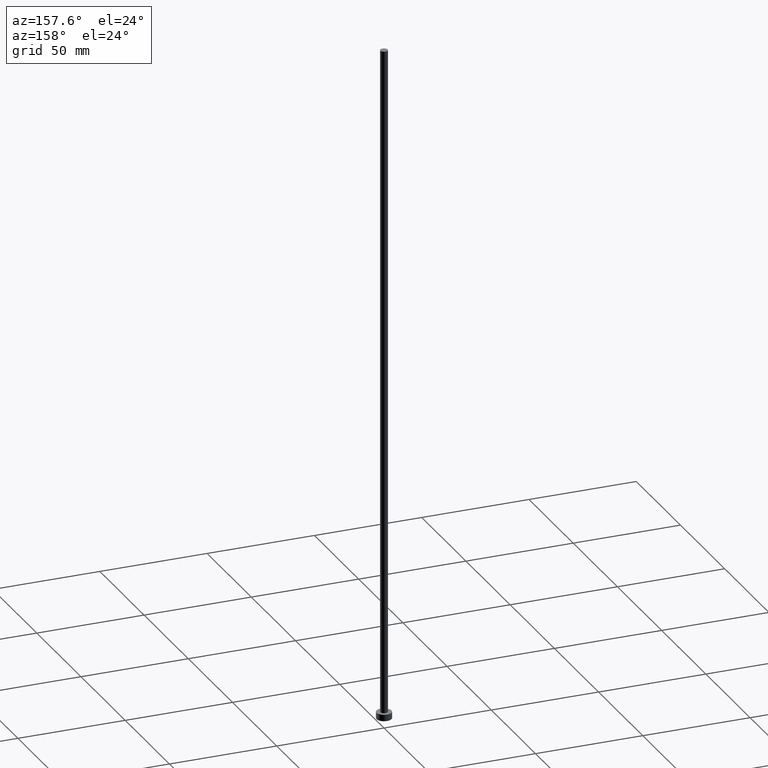
[diagram: clean part render]
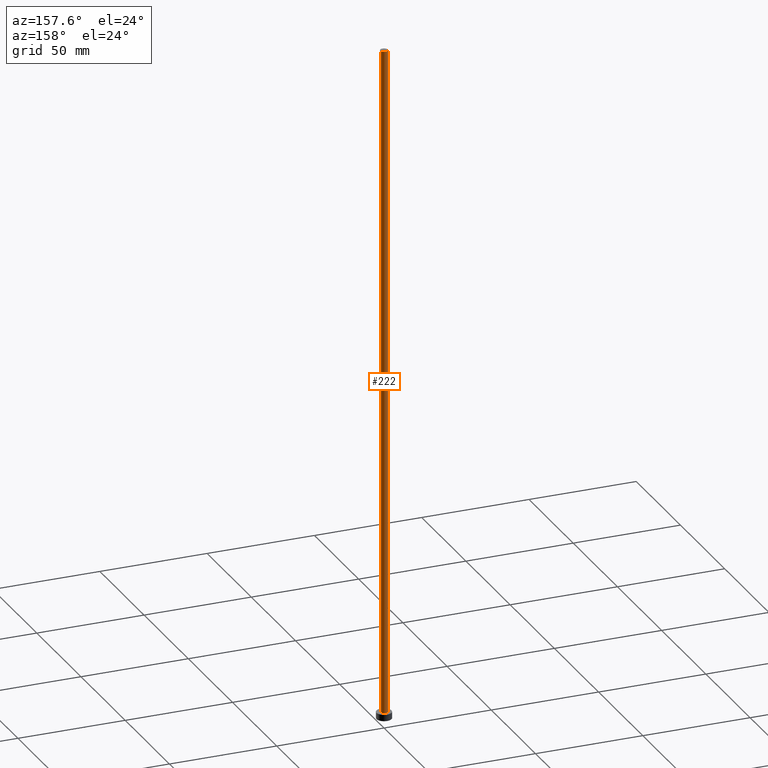
[diagram: same view with one face highlighted and labeled with its STEP entity id]
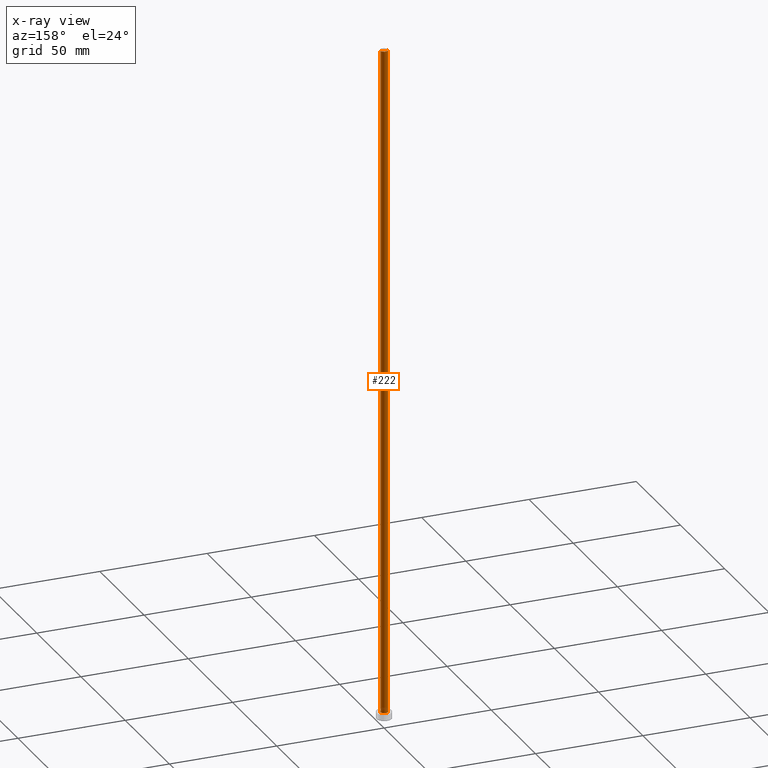
[diagram: x-ray of the same camera — body ghosted, the highlighted face saturated]
A machine part, auxiliary view. The second image highlights one B-rep face of the part: STEP entity #222.
The next image is the same camera in x-ray: the body ghosted, the highlighted face saturated — about 0% of this face is hidden behind the body in this view.
In plain terms, the highlighted cylindrical surface (edge-blend (fillet) strip) has radius 1.75 mm, axis along (-0, -0, -1).
Its self-contained STEP definition (entity closure, byte-faithful):
#6 = CARTESIAN_POINT ( 'NONE',  ( -1.750000000000000000, 0.000000000000000000, 315.0000000000000000 ) ) ;
#15 = DIRECTION ( 'NONE',  ( -0.000000000000000000, -0.000000000000000000, -1.000000000000000000 ) ) ;
#17 = EDGE_CURVE ( 'NONE', #188, #238, #212, .T. ) ;
#23 = FACE_OUTER_BOUND ( 'NONE', #67, .T. ) ;
#26 = EDGE_CURVE ( 'NONE', #211, #188, #53, .T. ) ;
#36 = EDGE_CURVE ( 'NONE', #211, #235, #133, .T. ) ;
#38 = DIRECTION ( 'NONE',  ( 1.000000000000000000, 0.000000000000000000, 0.000000000000000000 ) ) ;
#46 = AXIS2_PLACEMENT_3D ( 'NONE', #227, #117, #98 ) ;
#49 = VECTOR ( 'NONE', #15, 1000.000000000000000 ) ;
#50 = ORIENTED_EDGE ( 'NONE', *, *, #26, .T. ) ;
#53 = LINE ( 'NONE', #241, #49 ) ;
#67 = EDGE_LOOP ( 'NONE', ( #130, #50, #230, #136 ) ) ;
#72 = CARTESIAN_POINT ( 'NONE',  ( 0.000000000000000000, 0.000000000000000000, 3.000000000000000000 ) ) ;
#80 = LINE ( 'NONE', #6, #204 ) ;
#97 = AXIS2_PLACEMENT_3D ( 'NONE', #242, #116, #192 ) ;
#98 = DIRECTION ( 'NONE',  ( -1.000000000000000000, 0.000000000000000000, 0.000000000000000000 ) ) ;
#111 = AXIS2_PLACEMENT_3D ( 'NONE', #72, #175, #38 ) ;
#116 = DIRECTION ( 'NONE',  ( 0.000000000000000000, 0.000000000000000000, 1.000000000000000000 ) ) ;
#117 = DIRECTION ( 'NONE',  ( -0.000000000000000000, -0.000000000000000000, -1.000000000000000000 ) ) ;
#120 = CARTESIAN_POINT ( 'NONE',  ( 1.750000000000000000, 2.143131898507868297E-16, 3.000000000000000000 ) ) ;
#130 = ORIENTED_EDGE ( 'NONE', *, *, #36, .F. ) ;
#133 = CIRCLE ( 'NONE', #97, 1.750000000000000000 ) ;
#136 = ORIENTED_EDGE ( 'NONE', *, *, #255, .F. ) ;
#140 = CARTESIAN_POINT ( 'NONE',  ( 1.750000000000000000, 2.143131898507868297E-16, 315.0000000000000000 ) ) ;
#161 = CYLINDRICAL_SURFACE ( 'NONE', #46, 1.750000000000000000 ) ;
#175 = DIRECTION ( 'NONE',  ( 0.000000000000000000, 0.000000000000000000, 1.000000000000000000 ) ) ;
#177 = DIRECTION ( 'NONE',  ( -0.000000000000000000, -0.000000000000000000, -1.000000000000000000 ) ) ;
#181 = CARTESIAN_POINT ( 'NONE',  ( -1.750000000000000000, 0.000000000000000000, 3.000000000000000000 ) ) ;
#188 = VERTEX_POINT ( 'NONE', #120 ) ;
#192 = DIRECTION ( 'NONE',  ( 1.000000000000000000, 0.000000000000000000, 0.000000000000000000 ) ) ;
#199 = CARTESIAN_POINT ( 'NONE',  ( -1.750000000000000000, 0.000000000000000000, 315.0000000000000000 ) ) ;
#204 = VECTOR ( 'NONE', #177, 1000.000000000000000 ) ;
#211 = VERTEX_POINT ( 'NONE', #140 ) ;
#212 = CIRCLE ( 'NONE', #111, 1.750000000000000000 ) ;
#222 = ADVANCED_FACE ( 'NONE', ( #23 ), #161, .T. ) ;
#227 = CARTESIAN_POINT ( 'NONE',  ( 0.000000000000000000, 0.000000000000000000, 315.0000000000000000 ) ) ;
#230 = ORIENTED_EDGE ( 'NONE', *, *, #17, .T. ) ;
#235 = VERTEX_POINT ( 'NONE', #199 ) ;
#238 = VERTEX_POINT ( 'NONE', #181 ) ;
#241 = CARTESIAN_POINT ( 'NONE',  ( 1.750000000000000000, 2.143131898507868297E-16, 315.0000000000000000 ) ) ;
#242 = CARTESIAN_POINT ( 'NONE',  ( 0.000000000000000000, 0.000000000000000000, 315.0000000000000000 ) ) ;
#255 = EDGE_CURVE ( 'NONE', #235, #238, #80, .T. ) ;